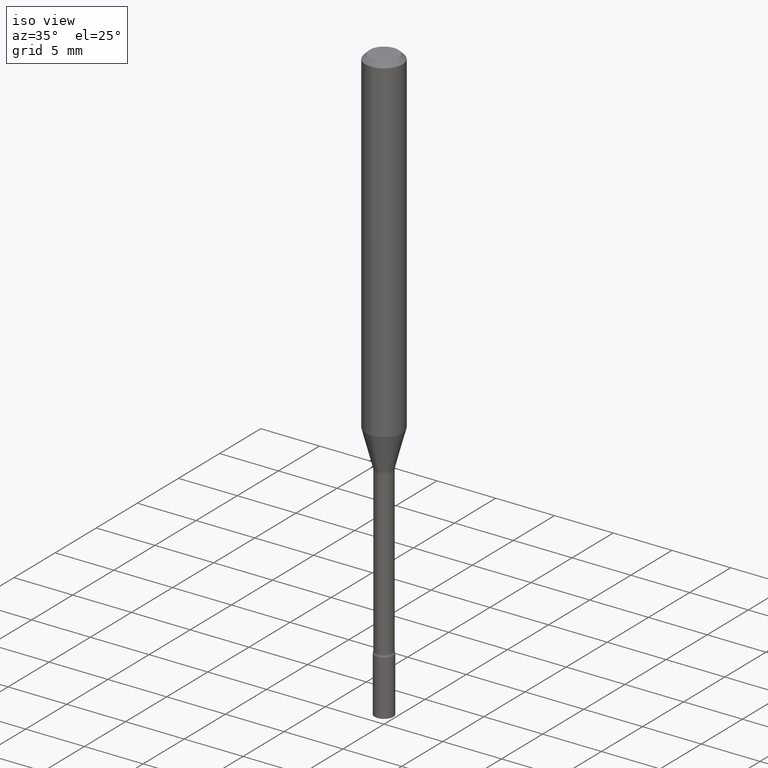
[diagram: clean part render]
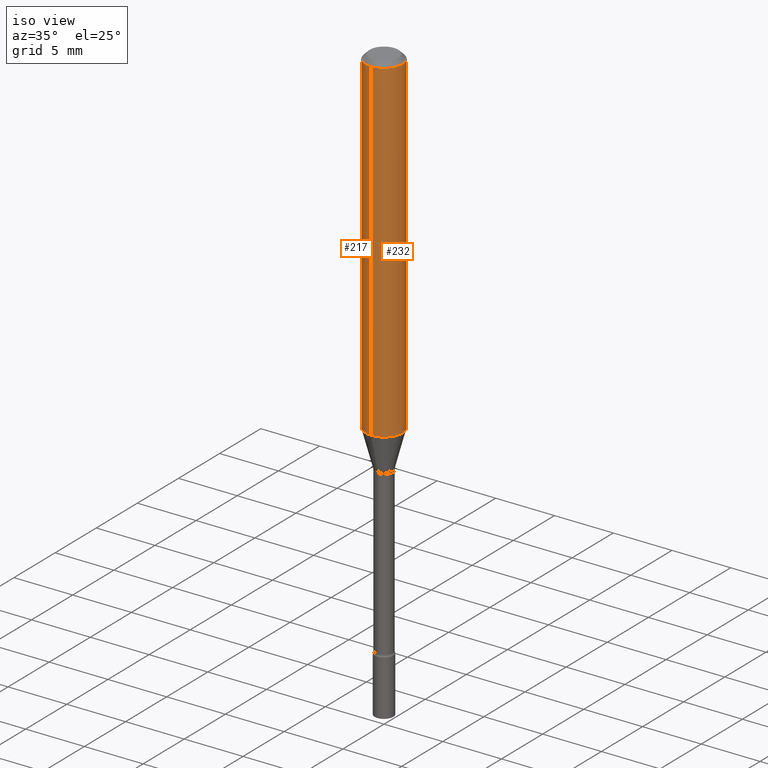
[diagram: same view with one multi-face feature highlighted, each face labeled with its STEP entity id]
A machine part, iso view. The highlighted faces form ONE feature: a constant-radius fillet chain: 2 tangent blend faces with common blend radius 1.5875 mm. The faces share edges in the B-rep.
Their STEP definitions:
[1] entity #217 (Cylinder):
#17 = ORIENTED_EDGE ( 'NONE', *, *, #403, .T. ) ;
#30 = CARTESIAN_POINT ( 'NONE',  ( 4.440892098500625669E-16, 0.06250000000000000000, -2.182176077942513406E-16 ) ) ;
#61 = DIRECTION ( 'NONE',  ( -2.445468536737133447E-29, 3.491481724708021844E-15, 1.000000000000000000 ) ) ;
#71 = VERTEX_POINT ( 'NONE', #239 ) ;
#93 = DIRECTION ( 'NONE',  ( -6.982962677686265922E-15, -1.000000000000000000, 4.370956789862821150E-15 ) ) ;
#101 = CYLINDRICAL_SURFACE ( 'NONE', #170, 0.06250000000000000000 ) ;
#129 = CARTESIAN_POINT ( 'NONE',  ( 4.440892098500904235E-16, 0.06249999999999995143, -0.01500000000000024751 ) ) ;
#131 = DIRECTION ( 'NONE',  ( -2.445468536737133447E-29, 3.491481724708021844E-15, 1.000000000000000000 ) ) ;
#164 = AXIS2_PLACEMENT_3D ( 'NONE', #401, #131, #93 ) ;
#170 = AXIS2_PLACEMENT_3D ( 'NONE', #253, #61, #216 ) ;
#181 = VERTEX_POINT ( 'NONE', #336 ) ;
#188 = VERTEX_POINT ( 'NONE', #327 ) ;
#199 = EDGE_CURVE ( 'NONE', #181, #322, #510, .T. ) ;
#211 = EDGE_CURVE ( 'NONE', #71, #188, #423, .T. ) ;
#214 = EDGE_LOOP ( 'NONE', ( #305, #17, #302, #262 ) ) ;
#216 = DIRECTION ( 'NONE',  ( -6.982962677686265922E-15, -1.000000000000000000, 3.491481724708021450E-15 ) ) ;
#217 = ADVANCED_FACE ( 'NONE', ( #340 ), #101, .T. ) ;
#235 = VECTOR ( 'NONE', #458, 39.37007874015748143 ) ;
#238 = CARTESIAN_POINT ( 'NONE',  ( 3.668202805105707334E-31, -5.237222587062043490E-17, -0.01500000000000003067 ) ) ;
#239 = CARTESIAN_POINT ( 'NONE',  ( -4.364351673553641579E-16, -0.06250000000000398293, -1.131536105567577888 ) ) ;
#253 = CARTESIAN_POINT ( 'NONE',  ( 0.000000000000000000, 0.000000000000000000, 0.000000000000000000 ) ) ;
#262 = ORIENTED_EDGE ( 'NONE', *, *, #409, .F. ) ;
#265 = VECTOR ( 'NONE', #465, 39.37007874015748143 ) ;
#280 = DIRECTION ( 'NONE',  ( -2.445468536737133447E-29, 3.491481724708021844E-15, 1.000000000000000000 ) ) ;
#294 = CARTESIAN_POINT ( 'NONE',  ( -4.364351673553916201E-16, -0.06250000000000000000, 2.182176077942513406E-16 ) ) ;
#302 = ORIENTED_EDGE ( 'NONE', *, *, #211, .T. ) ;
#305 = ORIENTED_EDGE ( 'NONE', *, *, #199, .F. ) ;
#322 = VERTEX_POINT ( 'NONE', #129 ) ;
#324 = CIRCLE ( 'NONE', #164, 0.06250000000000000000 ) ;
#327 = CARTESIAN_POINT ( 'NONE',  ( -4.364351673553912750E-16, -0.06250000000000005551, -0.01499999999999981209 ) ) ;
#336 = CARTESIAN_POINT ( 'NONE',  ( 4.440892098500899305E-16, 0.06249999999999602401, -1.131536105567578554 ) ) ;
#340 = FACE_OUTER_BOUND ( 'NONE', #214, .T. ) ;
#360 = DIRECTION ( 'NONE',  ( -6.982962677686265922E-15, -1.000000000000000000, 3.483106191921935554E-15 ) ) ;
#390 = CIRCLE ( 'NONE', #516, 0.06250000000000000000 ) ;
#401 = CARTESIAN_POINT ( 'NONE',  ( 2.767135944347580166E-29, -3.950737633436486769E-15, -1.131536105567578110 ) ) ;
#403 = EDGE_CURVE ( 'NONE', #181, #71, #324, .T. ) ;
#409 = EDGE_CURVE ( 'NONE', #322, #188, #390, .T. ) ;
#423 = LINE ( 'NONE', #294, #235 ) ;
#458 = DIRECTION ( 'NONE',  ( -2.445468536737133447E-29, 3.491481724708022239E-15, 1.000000000000000000 ) ) ;
#465 = DIRECTION ( 'NONE',  ( -2.445468536737133447E-29, 3.491481724708022239E-15, 1.000000000000000000 ) ) ;
#510 = LINE ( 'NONE', #30, #265 ) ;
#516 = AXIS2_PLACEMENT_3D ( 'NONE', #238, #280, #360 ) ;
[2] entity #232 (Cylinder):
#2 = CARTESIAN_POINT ( 'NONE',  ( 0.000000000000000000, 0.000000000000000000, 0.000000000000000000 ) ) ;
#5 = DIRECTION ( 'NONE',  ( -2.445468536737133447E-29, 3.491481724708021844E-15, 1.000000000000000000 ) ) ;
#22 = FACE_OUTER_BOUND ( 'NONE', #227, .T. ) ;
#30 = CARTESIAN_POINT ( 'NONE',  ( 4.440892098500625669E-16, 0.06250000000000000000, -2.182176077942513406E-16 ) ) ;
#60 = ORIENTED_EDGE ( 'NONE', *, *, #199, .T. ) ;
#66 = EDGE_CURVE ( 'NONE', #71, #181, #481, .T. ) ;
#71 = VERTEX_POINT ( 'NONE', #239 ) ;
#106 = DIRECTION ( 'NONE',  ( -2.445468536737133447E-29, 3.491481724708021844E-15, 1.000000000000000000 ) ) ;
#124 = DIRECTION ( 'NONE',  ( -2.445468536737133447E-29, 3.491481724708021844E-15, 1.000000000000000000 ) ) ;
#129 = CARTESIAN_POINT ( 'NONE',  ( 4.440892098500904235E-16, 0.06249999999999995143, -0.01500000000000024751 ) ) ;
#148 = ORIENTED_EDGE ( 'NONE', *, *, #211, .F. ) ;
#181 = VERTEX_POINT ( 'NONE', #336 ) ;
#188 = VERTEX_POINT ( 'NONE', #327 ) ;
#199 = EDGE_CURVE ( 'NONE', #181, #322, #510, .T. ) ;
#207 = AXIS2_PLACEMENT_3D ( 'NONE', #2, #5, #310 ) ;
#211 = EDGE_CURVE ( 'NONE', #71, #188, #423, .T. ) ;
#227 = EDGE_LOOP ( 'NONE', ( #254, #60, #343, #148 ) ) ;
#229 = AXIS2_PLACEMENT_3D ( 'NONE', #504, #106, #258 ) ;
#232 = ADVANCED_FACE ( 'NONE', ( #22 ), #429, .T. ) ;
#235 = VECTOR ( 'NONE', #458, 39.37007874015748143 ) ;
#236 = CIRCLE ( 'NONE', #229, 0.06250000000000000000 ) ;
#239 = CARTESIAN_POINT ( 'NONE',  ( -4.364351673553641579E-16, -0.06250000000000398293, -1.131536105567577888 ) ) ;
#254 = ORIENTED_EDGE ( 'NONE', *, *, #66, .T. ) ;
#258 = DIRECTION ( 'NONE',  ( -6.982962677686265922E-15, -1.000000000000000000, 3.483106191921935554E-15 ) ) ;
#265 = VECTOR ( 'NONE', #465, 39.37007874015748143 ) ;
#294 = CARTESIAN_POINT ( 'NONE',  ( -4.364351673553916201E-16, -0.06250000000000000000, 2.182176077942513406E-16 ) ) ;
#310 = DIRECTION ( 'NONE',  ( -6.982962677686265922E-15, -1.000000000000000000, 3.491481724708021450E-15 ) ) ;
#322 = VERTEX_POINT ( 'NONE', #129 ) ;
#327 = CARTESIAN_POINT ( 'NONE',  ( -4.364351673553912750E-16, -0.06250000000000005551, -0.01499999999999981209 ) ) ;
#328 = AXIS2_PLACEMENT_3D ( 'NONE', #487, #124, #517 ) ;
#336 = CARTESIAN_POINT ( 'NONE',  ( 4.440892098500899305E-16, 0.06249999999999602401, -1.131536105567578554 ) ) ;
#343 = ORIENTED_EDGE ( 'NONE', *, *, #477, .F. ) ;
#423 = LINE ( 'NONE', #294, #235 ) ;
#429 = CYLINDRICAL_SURFACE ( 'NONE', #207, 0.06250000000000000000 ) ;
#458 = DIRECTION ( 'NONE',  ( -2.445468536737133447E-29, 3.491481724708022239E-15, 1.000000000000000000 ) ) ;
#465 = DIRECTION ( 'NONE',  ( -2.445468536737133447E-29, 3.491481724708022239E-15, 1.000000000000000000 ) ) ;
#477 = EDGE_CURVE ( 'NONE', #188, #322, #236, .T. ) ;
#481 = CIRCLE ( 'NONE', #328, 0.06250000000000000000 ) ;
#487 = CARTESIAN_POINT ( 'NONE',  ( 2.767135944347580166E-29, -3.950737633436486769E-15, -1.131536105567578110 ) ) ;
#504 = CARTESIAN_POINT ( 'NONE',  ( 3.668202805105707334E-31, -5.237222587062043490E-17, -0.01500000000000003067 ) ) ;
#510 = LINE ( 'NONE', #30, #265 ) ;
#517 = DIRECTION ( 'NONE',  ( -6.982962677686265922E-15, -1.000000000000000000, 4.370956789862821150E-15 ) ) ;